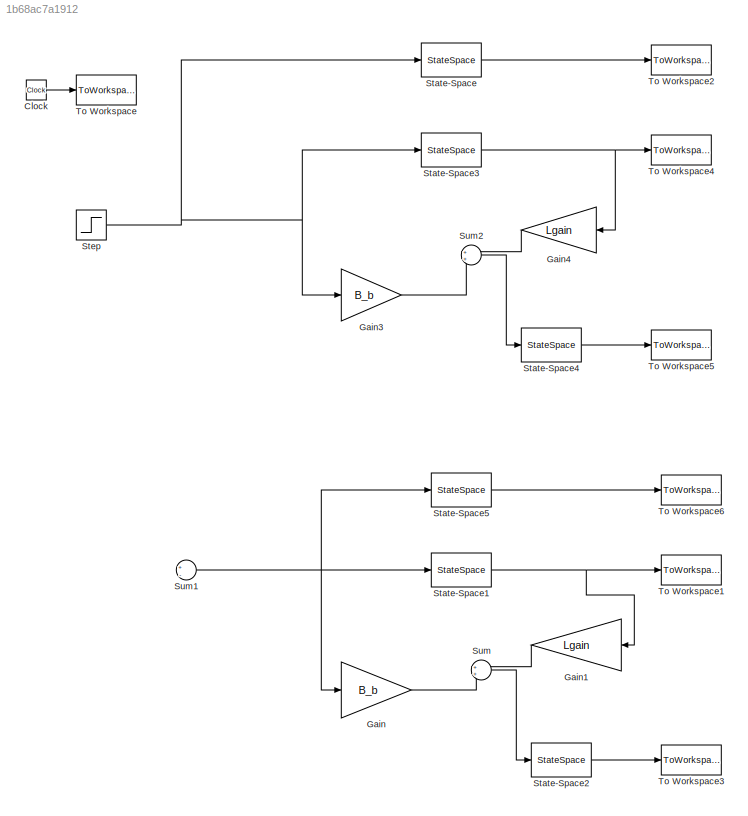
MODEL slx_1b68ac7a1912
KIND model
CONFIG AbsTol = auto
CONFIG EnableMultiTasking = off
CONFIG FixedStep = auto
CONFIG MaxStep = auto
CONFIG MinStep = auto
CONFIG RelTol = 1e-3
CONFIG SampleTimeConstraint = Unconstrained
CONFIG SolverName = VariableStepAuto
CONFIG StartTime = 0.0
CONFIG StopTime = 10.0
BLOCK [Clock] Clock
BLOCK [Gain] Gain
  Commented = on
  Gain = B_b
BLOCK [Gain] Gain1
  Commented = on
  Gain = Lgain
  Multiplication = Matrix(K*u)
BLOCK [Gain] Gain3
  Gain = B_b
BLOCK [Gain] Gain4
  Gain = Lgain
  Multiplication = Matrix(K*u)
BLOCK [StateSpace] State-Space
  A = A_b
  B = B_b
  C = eye(4)
  D = [0;0;0;0]
  InitialCondition = xS0
BLOCK [StateSpace] State-Space1
  A = A_b
  B = B_b
  C = C_b
  Commented = on
  D = D_b
  InitialCondition = xS0
BLOCK [StateSpace] State-Space2
  A = A_b-Lgain*C_b
  B = eye(4)
  C = eye(4)
  Commented = on
  D = zeros(4,4)
  InitialCondition = xM0
  NameLocation = top
BLOCK [StateSpace] State-Space3
  A = A_b
  B = B_b
  C = C_b
  D = D_b
  InitialCondition = xS0
BLOCK [StateSpace] State-Space4
  A = A_b-Lgain*C_b
  B = eye(4)
  C = eye(4)
  D = zeros(4,4)
  InitialCondition = xM0
  NameLocation = top
BLOCK [StateSpace] State-Space5
  A = A_b
  B = B_b
  C = eye(size(A_b))
  Commented = on
  D = zeros(size(C_b,1),size(B_b,2))
  InitialCondition = xS0
BLOCK [Step] Step
  SampleTime = 0
BLOCK [Sum] Sum
  Commented = on
BLOCK [Sum] Sum1
  Commented = on
  Inputs = +|-
BLOCK [Sum] Sum2
BLOCK [ToWorkspace] To Workspace
  MaxDataPoints = inf
  SampleTime = -1
  VariableName = t
BLOCK [ToWorkspace] To Workspace1
  Commented = on
  MaxDataPoints = inf
  SampleTime = -1
  VariableName = yf
BLOCK [ToWorkspace] To Workspace2
  MaxDataPoints = inf
  SampleTime = -1
  VariableName = x
BLOCK [ToWorkspace] To Workspace3
  Commented = on
  MaxDataPoints = inf
  SampleTime = -1
  VariableName = x_hatf
BLOCK [ToWorkspace] To Workspace4
  MaxDataPoints = inf
  SampleTime = -1
  VariableName = y
BLOCK [ToWorkspace] To Workspace5
  MaxDataPoints = inf
  SampleTime = -1
  VariableName = x_hat
BLOCK [ToWorkspace] To Workspace6
  Commented = on
  MaxDataPoints = inf
  SampleTime = -1
  VariableName = xf
LINE Clock:1 -> To Workspace:1
LINE Gain1:1 -> Sum:1
LINE Gain3:1 -> Sum2:2
LINE Gain4:1 -> Sum2:1
LINE Gain:1 -> Sum:2
NET State-Space1:1 -> Gain1:1, To Workspace1:1
LINE State-Space2:1 -> To Workspace3:1
NET State-Space3:1 -> Gain4:1, To Workspace4:1
LINE State-Space4:1 -> To Workspace5:1
LINE State-Space5:1 -> To Workspace6:1
LINE State-Space:1 -> To Workspace2:1
NET Step:1 -> Gain3:1, State-Space3:1, State-Space:1
NET Sum1:1 -> Gain:1, State-Space1:1, State-Space5:1
LINE Sum2:1 -> State-Space4:1
LINE Sum:1 -> State-Space2:1
note: NET lines group one-source signal fan-out (src -> all destinations, sorted); 1:1 wires keep LINE
